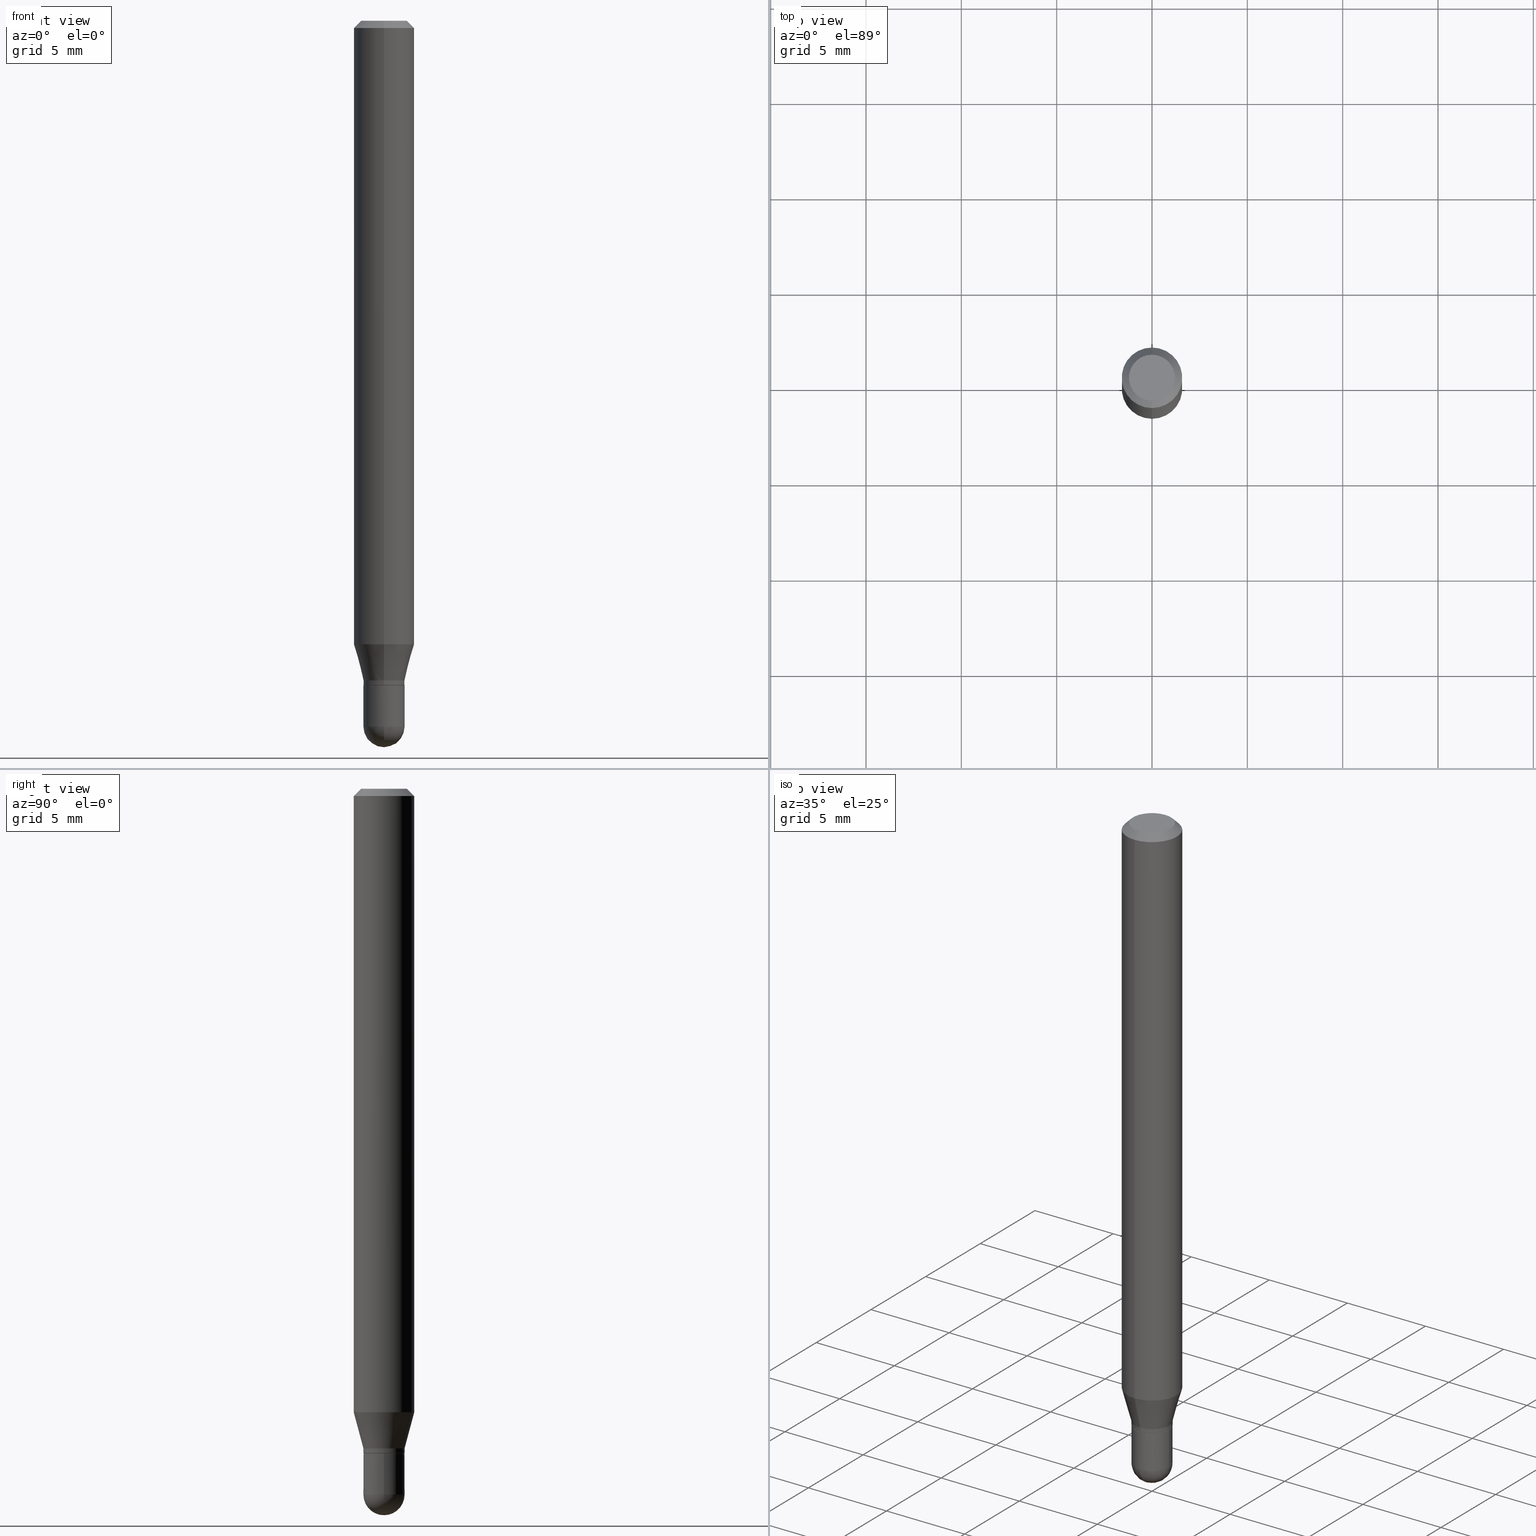
[diagram: canonical four-view strip — front | top / right | iso, engineering-drawing reading convention]
A machine part, canonical four-view strip (front | top / right | iso — engineering-drawing reading convention). The complete STEP part file that produces these views, byte-faithful:
ISO-10303-21;
HEADER;
FILE_DESCRIPTION (( 'STEP AP203' ),
    '1' );
FILE_NAME ('00801.STEP',
    '2024-03-07T18:25:49',
    ( '' ),
    ( '' ),
    'SwSTEP 2.0',
    'SolidWorks 2023',
    '' );
FILE_SCHEMA (( 'CONFIG_CONTROL_DESIGN' ));
ENDSEC;

DATA;
#1 = DIRECTION ( 'NONE',  ( -2.445382581440065558E-29, 3.491604817585695240E-15, 1.000000000000000000 ) ) ;
#2 = ORIENTED_EDGE ( 'NONE', *, *, #421, .F. ) ;
#3 = CC_DESIGN_PERSON_AND_ORGANIZATION_ASSIGNMENT ( #485, #443, ( #106 ) ) ;
#4 = CARTESIAN_POINT ( 'NONE',  ( 2.967759138017017551E-16, 0.04249999999999488215, -1.457500000000000462 ) ) ;
#5 = SECURITY_CLASSIFICATION_LEVEL ( 'unclassified' ) ;
#6 = EDGE_LOOP ( 'NONE', ( #135, #59, #113, #239 ) ) ;
#7 = EDGE_CURVE ( 'NONE', #124, #486, #461, .T. ) ;
#8 = DIRECTION ( 'NONE',  ( -1.000000000000000000, 6.982962677686265922E-15, -4.876176775795935793E-29 ) ) ;
#9 = DATE_AND_TIME ( #164, #139 ) ;
#10 = ORIENTED_EDGE ( 'NONE', *, *, #308, .T. ) ;
#11 = CARTESIAN_POINT ( 'NONE',  ( 3.668073872160100859E-31, -5.237407226378546385E-17, -0.01500000000000000812 ) ) ;
#12 = CC_DESIGN_PERSON_AND_ORGANIZATION_ASSIGNMENT ( #30, #420, ( #20 ) ) ;
#13 = PERSON_AND_ORGANIZATION_ROLE ( 'design_supplier' ) ;
#14 = ORIENTED_EDGE ( 'NONE', *, *, #445, .F. ) ;
#15 = CIRCLE ( 'NONE', #394, 0.04749999999999999362 ) ;
#16 = LOCAL_TIME ( 13, 25, 49.00000000000000000, #258 ) ;
#17 = LINE ( 'NONE', #173, #365 ) ;
#18 = EDGE_LOOP ( 'NONE', ( #501, #351, #49, #360 ) ) ;
#19 = ORIENTED_EDGE ( 'NONE', *, *, #387, .F. ) ;
#20 = PRODUCT_DEFINITION ( 'UNKNOWN', '', #356, #380 ) ;
#21 = CARTESIAN_POINT ( 'NONE',  ( 4.364351673553919652E-16, 0.06249999999999995143, -0.01500000000000022669 ) ) ;
#22 = AXIS2_PLACEMENT_3D ( 'NONE', #78, #39, #389 ) ;
#23 = MECHANICAL_CONTEXT ( 'NONE', #370, 'mechanical' ) ;
#24 = AXIS2_PLACEMENT_3D ( 'NONE', #292, #456, #185 ) ;
#25 = ORIENTED_EDGE ( 'NONE', *, *, #73, .T. ) ;
#26 = DATE_AND_TIME ( #378, #16 ) ;
#27 = ADVANCED_FACE ( 'NONE', ( #454 ), #221, .T. ) ;
#28 = CARTESIAN_POINT ( 'NONE',  ( 0.000000000000000000, 0.000000000000000000, 0.000000000000000000 ) ) ;
#29 = CARTESIAN_POINT ( 'NONE',  ( 3.560636328285825248E-29, -5.094038800260261442E-15, -1.457500000000000240 ) ) ;
#30 = PERSON_AND_ORGANIZATION ( #193, #451 ) ;
#31 = DIRECTION ( 'NONE',  ( -7.105427357601001070E-15, -1.000000000000000000, 0.000000000000000000 ) ) ;
#32 = DIRECTION ( 'NONE',  ( 2.445382581440065558E-29, -3.491604817585695240E-15, -1.000000000000000000 ) ) ;
#33 = CARTESIAN_POINT ( 'NONE',  ( 3.560636328285825248E-29, -5.094038800260261442E-15, -1.457500000000000240 ) ) ;
#34 = EDGE_LOOP ( 'NONE', ( #141, #402, #232, #94 ) ) ;
#35 = APPROVAL ( #263, 'UNSPECIFIED' ) ;
#36 = CARTESIAN_POINT ( 'NONE',  ( 3.330611075921369226E-29, -4.755565761551716279E-15, -1.362000000000000099 ) ) ;
#37 = CONICAL_SURFACE ( 'NONE', #171, 0.06250000000000000000, 0.7853981633974483900 ) ;
#38 = CC_DESIGN_APPROVAL ( #35, ( #356 ) ) ;
#39 = DIRECTION ( 'NONE',  ( -2.445468806185136597E-29, 3.491481338843145583E-15, 1.000000000000000000 ) ) ;
#40 = CARTESIAN_POINT ( 'NONE',  ( 3.353842210445050313E-29, -4.788736007318781411E-15, -1.371500000000000163 ) ) ;
#41 = APPROVAL_DATE_TIME ( #174, #35 ) ;
#42 = DIRECTION ( 'NONE',  ( -2.445382581440065558E-29, 3.491604817585695240E-15, 1.000000000000000000 ) ) ;
#43 = PERSON_AND_ORGANIZATION_ROLE ( 'creator' ) ;
#44 = ORIENTED_EDGE ( 'NONE', *, *, #279, .F. ) ;
#45 = EDGE_CURVE ( 'NONE', #439, #447, #160, .T. ) ;
#46 = CLOSED_SHELL ( 'NONE', ( #426, #400, #481, #58, #177, #508, #225, #120, #449, #192, #132, #464 ) ) ;
#47 = DIRECTION ( 'NONE',  ( -2.445382581440065838E-29, 3.491604817585695634E-15, 1.000000000000000000 ) ) ;
#48 = DATE_AND_TIME ( #288, #181 ) ;
#49 = ORIENTED_EDGE ( 'NONE', *, *, #408, .T. ) ;
#50 = DIRECTION ( 'NONE',  ( -2.445468806185136597E-29, 3.491481338843145583E-15, 1.000000000000000000 ) ) ;
#51 = EDGE_LOOP ( 'NONE', ( #249, #374, #199, #467 ) ) ;
#52 = CARTESIAN_POINT ( 'NONE',  ( -3.773273898774340269E-16, -0.04749999999999999362, 1.569967744837605006E-16 ) ) ;
#53 = ORIENTED_EDGE ( 'NONE', *, *, #244, .F. ) ;
#54 = AXIS2_PLACEMENT_3D ( 'NONE', #314, #272, #110 ) ;
#55 = CIRCLE ( 'NONE', #342, 0.04250000000000000999 ) ;
#56 = APPROVAL_ROLE ( '' ) ;
#57 = VERTEX_POINT ( 'NONE', #333 ) ;
#58 = ADVANCED_FACE ( 'NONE', ( #337 ), #184, .T. ) ;
#59 = ORIENTED_EDGE ( 'NONE', *, *, #158, .T. ) ;
#60 = ORIENTED_EDGE ( 'NONE', *, *, #245, .T. ) ;
#61 = EDGE_CURVE ( 'NONE', #372, #486, #498, .T. ) ;
#62 = AXIS2_PLACEMENT_3D ( 'NONE', #157, #269, #31 ) ;
#63 = CARTESIAN_POINT ( 'NONE',  ( -2.967759138016324832E-16, -0.04250000000000468681, -1.361999999999999877 ) ) ;
#64 = EDGE_LOOP ( 'NONE', ( #25, #369, #478, #44 ) ) ;
#65 = CC_DESIGN_DATE_AND_TIME_ASSIGNMENT ( #108, #148, ( #20 ) ) ;
#66 =( CONVERSION_BASED_UNIT ( 'INCH', #453 ) LENGTH_UNIT ( ) NAMED_UNIT ( #462 ) );
#67 = ORIENTED_EDGE ( 'NONE', *, *, #315, .T. ) ;
#68 = APPROVAL_ROLE ( '' ) ;
#69 = EDGE_CURVE ( 'NONE', #247, #109, #455, .T. ) ;
#70 = CARTESIAN_POINT ( 'NONE',  ( 0.000000000000000000, 0.000000000000000000, 0.000000000000000000 ) ) ;
#71 = CARTESIAN_POINT ( 'NONE',  ( -0.04250000000000000999, -4.637592561430298716E-15, -1.457500000000000240 ) ) ;
#72 = CIRCLE ( 'NONE', #473, 0.06250000000000000000 ) ;
#73 = EDGE_CURVE ( 'NONE', #92, #372, #118, .T. ) ;
#74 = ORIENTED_EDGE ( 'NONE', *, *, #459, .F. ) ;
#75 = FACE_OUTER_BOUND ( 'NONE', #278, .T. ) ;
#76 = CARTESIAN_POINT ( 'NONE',  ( 3.148085235163804015E-29, -4.494948829968075208E-15, -1.287358983848622573 ) ) ;
#77 = EDGE_CURVE ( 'NONE', #393, #122, #187, .T. ) ;
#78 = CARTESIAN_POINT ( 'NONE',  ( 3.564270785014837509E-29, -5.088834051363884851E-15, -1.457500000000000240 ) ) ;
#79 = CIRCLE ( 'NONE', #180, 0.04250000000000000999 ) ;
#80 = FACE_OUTER_BOUND ( 'NONE', #90, .T. ) ;
#81 = DIRECTION ( 'NONE',  ( -4.851104656540964275E-15, -0.7071067811865500152, -0.7071067811865450192 ) ) ;
#82 = EDGE_LOOP ( 'NONE', ( #60, #418, #444, #319, #507 ) ) ;
#83 = CARTESIAN_POINT ( 'NONE',  ( 3.666385980913199605E-29, -5.239824382712906867E-15, -1.500000000000000222 ) ) ;
#84 = ORIENTED_EDGE ( 'NONE', *, *, #320, .T. ) ;
#85 = ADVANCED_FACE ( 'NONE', ( #226 ), #457, .T. ) ;
#86 = AXIS2_PLACEMENT_3D ( 'NONE', #76, #200, #163 ) ;
#87 = CC_DESIGN_APPROVAL ( #286, ( #106 ) ) ;
#88 = CARTESIAN_POINT ( 'NONE',  ( 3.019806626980764231E-16, 0.04249999999999526379, -1.371500000000000385 ) ) ;
#89 = SHAPE_DEFINITION_REPRESENTATION ( #133, #419 ) ;
#90 = EDGE_LOOP ( 'NONE', ( #422, #10, #480, #328 ) ) ;
#91 = DIRECTION ( 'NONE',  ( 2.438088387897960049E-29, -3.491481338843145188E-15, -1.000000000000000000 ) ) ;
#92 = VERTEX_POINT ( 'NONE', #98 ) ;
#93 = APPLICATION_PROTOCOL_DEFINITION ( 'international standard', 'config_control_design', 1994, #370 ) ;
#94 = ORIENTED_EDGE ( 'NONE', *, *, #7, .F. ) ;
#95 = CIRCLE ( 'NONE', #500, 0.04249999999999993366 ) ;
#96 = AXIS2_PLACEMENT_3D ( 'NONE', #479, #475, #438 ) ;
#97 =( NAMED_UNIT ( * ) SI_UNIT ( $, .STERADIAN. ) SOLID_ANGLE_UNIT ( ) );
#98 = CARTESIAN_POINT ( 'NONE',  ( -4.364351673553598192E-16, -0.06250000000000445477, -1.287358983848622129 ) ) ;
#99 = EDGE_CURVE ( 'NONE', #439, #122, #381, .T. ) ;
#100 = ORIENTED_EDGE ( 'NONE', *, *, #505, .F. ) ;
#101 = EDGE_CURVE ( 'NONE', #397, #247, #79, .T. ) ;
#102 = APPROVAL_STATUS ( 'not_yet_approved' ) ;
#103 = DIRECTION ( 'NONE',  ( -2.445468806185136877E-29, 3.491481338843145188E-15, 1.000000000000000000 ) ) ;
#104 = CC_DESIGN_DATE_AND_TIME_ASSIGNMENT ( #9, #277, ( #106 ) ) ;
#105 = FACE_OUTER_BOUND ( 'NONE', #51, .T. ) ;
#106 = SECURITY_CLASSIFICATION ( '', '', #5 ) ;
#107 = DIRECTION ( 'NONE',  ( -2.445382581440065558E-29, 3.491604817585695240E-15, 1.000000000000000000 ) ) ;
#108 = DATE_AND_TIME ( #460, #296 ) ;
#109 = VERTEX_POINT ( 'NONE', #510 ) ;
#110 = DIRECTION ( 'NONE',  ( -6.982962677686265922E-15, -1.000000000000000000, 6.504399984914913214E-15 ) ) ;
#111 = AXIS2_PLACEMENT_3D ( 'NONE', #36, #307, #117 ) ;
#112 = DIRECTION ( 'NONE',  ( -2.445382581440065558E-29, 3.491604817585695240E-15, 1.000000000000000000 ) ) ;
#113 = ORIENTED_EDGE ( 'NONE', *, *, #324, .F. ) ;
#114 = CARTESIAN_POINT ( 'NONE',  ( -0.04250000000000000999, 3.019806626980426500E-16, -2.090547413358335560E-30 ) ) ;
#115 = ADVANCED_FACE ( 'NONE', ( #349 ), #506, .T. ) ;
#116 = DIRECTION ( 'NONE',  ( 1.000000000000000000, -6.982962677686276177E-15, 0.000000000000000000 ) ) ;
#117 = DIRECTION ( 'NONE',  ( -6.982962677686265133E-15, -1.000000000000000000, 6.427877632151217642E-15 ) ) ;
#118 = CIRCLE ( 'NONE', #234, 0.06250000000000000000 ) ;
#119 = AXIS2_PLACEMENT_3D ( 'NONE', #28, #254, #407 ) ;
#120 = ADVANCED_FACE ( 'NONE', ( #471 ), #37, .T. ) ;
#121 = DIRECTION ( 'NONE',  ( -2.445382581440065838E-29, 3.491604817585695634E-15, 1.000000000000000000 ) ) ;
#122 = VERTEX_POINT ( 'NONE', #191 ) ;
#123 = CARTESIAN_POINT ( 'NONE',  ( -2.932844324627895747E-16, -0.04200000000000478351, -1.371999999999999664 ) ) ;
#124 = VERTEX_POINT ( 'NONE', #230 ) ;
#125 = FACE_OUTER_BOUND ( 'NONE', #169, .T. ) ;
#126 = ORIENTED_EDGE ( 'NONE', *, *, #194, .T. ) ;
#127 = AXIS2_PLACEMENT_3D ( 'NONE', #352, #423, #274 ) ;
#128 = AXIS2_PLACEMENT_3D ( 'NONE', #477, #1, #396 ) ;
#129 = CARTESIAN_POINT ( 'NONE',  ( 0.000000000000000000, 0.000000000000000000, 0.000000000000000000 ) ) ;
#130 = COORDINATED_UNIVERSAL_TIME_OFFSET ( 5, 0, .BEHIND. ) ;
#131 = ORIENTED_EDGE ( 'NONE', *, *, #154, .F. ) ;
#132 = ADVANCED_FACE ( 'NONE', ( #151 ), #472, .T. ) ;
#133 = PRODUCT_DEFINITION_SHAPE ( 'NONE', 'NONE',  #20 ) ;
#134 = DIRECTION ( 'NONE',  ( -6.982962677686265922E-15, -1.000000000000000000, 3.483106191921935554E-15 ) ) ;
#135 = ORIENTED_EDGE ( 'NONE', *, *, #412, .F. ) ;
#136 = CARTESIAN_POINT ( 'NONE',  ( 3.330611075921369226E-29, -4.755565761551716279E-15, -1.362000000000000099 ) ) ;
#137 = DIRECTION ( 'NONE',  ( -6.982962677686265922E-15, -1.000000000000000000, 4.370956789862821150E-15 ) ) ;
#138 = CIRCLE ( 'NONE', #22, 0.04250000000000000999 ) ;
#139 = LOCAL_TIME ( 13, 25, 49.00000000000000000, #237 ) ;
#140 = DIRECTION ( 'NONE',  ( -2.445382581440065558E-29, 3.491604817585695240E-15, 1.000000000000000000 ) ) ;
#141 = ORIENTED_EDGE ( 'NONE', *, *, #182, .F. ) ;
#142 = PERSON_AND_ORGANIZATION ( #193, #451 ) ;
#143 = DIRECTION ( 'NONE',  ( -6.982962677686265922E-15, -1.000000000000000000, 3.491604817585695240E-15 ) ) ;
#144 = DIRECTION ( 'NONE',  ( -6.982962677686266711E-15, -1.000000000000000000, 3.491604817585695240E-15 ) ) ;
#145 = CARTESIAN_POINT ( 'NONE',  ( 0.04250000000000000999, -2.967759138016664042E-16, 2.072375129713273202E-30 ) ) ;
#146 = APPLICATION_CONTEXT ( 'configuration controlled 3d designs of mechanical parts and assemblies' ) ;
#147 = AXIS2_PLACEMENT_3D ( 'NONE', #218, #414, #143 ) ;
#148 = DATE_TIME_ROLE ( 'creation_date' ) ;
#149 = DIRECTION ( 'NONE',  ( -2.445382581440065838E-29, 3.491604817585695634E-15, 1.000000000000000000 ) ) ;
#150 = DIRECTION ( 'NONE',  ( 1.000000000000000000, -6.982962677686273810E-15, 0.000000000000000000 ) ) ;
#151 = FACE_OUTER_BOUND ( 'NONE', #18, .T. ) ;
#152 = ORIENTED_EDGE ( 'NONE', *, *, #265, .F. ) ;
#153 = DIRECTION ( 'NONE',  ( 6.982962677686265922E-15, 1.000000000000000000, -6.427877632151214487E-15 ) ) ;
#154 = EDGE_CURVE ( 'NONE', #122, #393, #95, .T. ) ;
#155 = DIRECTION ( 'NONE',  ( -2.445382581440065558E-29, 3.491604817585695240E-15, 1.000000000000000000 ) ) ;
#156 = CC_DESIGN_PERSON_AND_ORGANIZATION_ASSIGNMENT ( #327, #13, ( #356 ) ) ;
#157 = CARTESIAN_POINT ( 'NONE',  ( 3.560636328285825248E-29, -5.094038800260261442E-15, -1.457500000000000240 ) ) ;
#158 = EDGE_CURVE ( 'NONE', #291, #397, #283, .T. ) ;
#159 = DIRECTION ( 'NONE',  ( 1.000000000000000000, -6.982962677686276177E-15, 0.000000000000000000 ) ) ;
#160 = CIRCLE ( 'NONE', #458, 0.04249999999999991979 ) ;
#161 = AXIS2_PLACEMENT_3D ( 'NONE', #223, #499, #144 ) ;
#162 = ORIENTED_EDGE ( 'NONE', *, *, #505, .T. ) ;
#163 = DIRECTION ( 'NONE',  ( -6.982962677686265922E-15, -1.000000000000000000, 4.370956789862821150E-15 ) ) ;
#164 = CALENDAR_DATE ( 2024, 7, 3 ) ;
#165 = ORIENTED_EDGE ( 'NONE', *, *, #77, .F. ) ;
#166 = CARTESIAN_POINT ( 'NONE',  ( 3.355064901735769338E-29, -4.790481809727574147E-15, -1.372000000000000108 ) ) ;
#167 = ORIENTED_EDGE ( 'NONE', *, *, #279, .T. ) ;
#168 = DIRECTION ( 'NONE',  ( 5.024295867788190974E-15, 0.7071067811865681119, 0.7071067811865270336 ) ) ;
#169 = EDGE_LOOP ( 'NONE', ( #406, #325, #131, #437 ) ) ;
#170 = EDGE_CURVE ( 'NONE', #301, #428, #214, .T. ) ;
#171 = AXIS2_PLACEMENT_3D ( 'NONE', #266, #32, #465 ) ;
#172 = CIRCLE ( 'NONE', #96, 0.04249999999999995448 ) ;
#173 = CARTESIAN_POINT ( 'NONE',  ( 3.019806626980419597E-16, 0.04249999999999991979, -1.483932047473917706E-16 ) ) ;
#174 = DATE_AND_TIME ( #189, #260 ) ;
#175 = EDGE_LOOP ( 'NONE', ( #14, #409 ) ) ;
#176 = ORIENTED_EDGE ( 'NONE', *, *, #474, .F. ) ;
#177 = ADVANCED_FACE ( 'NONE', ( #512 ), #347, .T. ) ;
#178 = DIRECTION ( 'NONE',  ( -2.445468806185136597E-29, 3.491481338843145583E-15, 1.000000000000000000 ) ) ;
#179 = ORIENTED_EDGE ( 'NONE', *, *, #101, .F. ) ;
#180 = AXIS2_PLACEMENT_3D ( 'NONE', #255, #197, #150 ) ;
#181 = LOCAL_TIME ( 13, 25, 49.00000000000000000, #130 ) ;
#182 = EDGE_CURVE ( 'NONE', #354, #124, #15, .T. ) ;
#183 = DIRECTION ( 'NONE',  ( 1.000000000000000000, -6.982962677686266711E-15, 4.876176775795935793E-29 ) ) ;
#184 = CYLINDRICAL_SURFACE ( 'NONE', #147, 0.06250000000000000000 ) ;
#185 = DIRECTION ( 'NONE',  ( 6.982962677686265922E-15, 1.000000000000000000, -3.483106191921935554E-15 ) ) ;
#186 = DIRECTION ( 'NONE',  ( -1.000000000000000000, 6.982962677686265922E-15, -4.883557194083112901E-29 ) ) ;
#187 = CIRCLE ( 'NONE', #215, 0.04249999999999993366 ) ;
#188 = CIRCLE ( 'NONE', #502, 0.04250000000000000999 ) ;
#189 = CALENDAR_DATE ( 2024, 7, 3 ) ;
#190 = CARTESIAN_POINT ( 'NONE',  ( 3.355064901735769338E-29, -4.790481809727574147E-15, -1.372000000000000108 ) ) ;
#191 = CARTESIAN_POINT ( 'NONE',  ( -2.967759138016324832E-16, -0.04250000000000468681, -1.361999999999999877 ) ) ;
#192 = ADVANCED_FACE ( 'NONE', ( #430 ), #470, .F. ) ;
#193 = PERSON ( 'UNSPECIFIED', 'UNSPECIFIED', 'UNSPECIFIED', ('UNSPECIFIED'), ('UNSPECIFIED'), ('UNSPECIFIED') ) ;
#194 = EDGE_CURVE ( 'NONE', #109, #57, #364, .T. ) ;
#195 = CARTESIAN_POINT ( 'NONE',  ( 2.165252843946101879E-46, -3.091625547099952297E-32, -8.854454351560001883E-18 ) ) ;
#196 = VECTOR ( 'NONE', #47, 39.37007874015748143 ) ;
#197 = DIRECTION ( 'NONE',  ( -2.445468806185136597E-29, 3.491481338843145583E-15, 1.000000000000000000 ) ) ;
#198 = VECTOR ( 'NONE', #81, 39.37007874015748143 ) ;
#199 = ORIENTED_EDGE ( 'NONE', *, *, #474, .T. ) ;
#200 = DIRECTION ( 'NONE',  ( -2.445382581440065558E-29, 3.491604817585695240E-15, 1.000000000000000000 ) ) ;
#201 = DIRECTION ( 'NONE',  ( -2.445382581440065558E-29, 3.491604817585695240E-15, 1.000000000000000000 ) ) ;
#202 = APPROVAL_DATE_TIME ( #48, #286 ) ;
#203 = CC_DESIGN_PERSON_AND_ORGANIZATION_ASSIGNMENT ( #336, #495, ( #302 ) ) ;
#204 = LINE ( 'NONE', #123, #483 ) ;
#205 = AXIS2_PLACEMENT_3D ( 'NONE', #335, #306, #183 ) ;
#206 = ORIENTED_EDGE ( 'NONE', *, *, #154, .T. ) ;
#207 = FACE_OUTER_BOUND ( 'NONE', #211, .T. ) ;
#208 = VERTEX_POINT ( 'NONE', #228 ) ;
#209 = CARTESIAN_POINT ( 'NONE',  ( -4.364351673553916201E-16, -0.06250000000000000000, 2.182253010991059525E-16 ) ) ;
#210 = PERSON_AND_ORGANIZATION ( #193, #451 ) ;
#211 = EDGE_LOOP ( 'NONE', ( #126, #399 ) ) ;
#212 = DIRECTION ( 'NONE',  ( 1.000000000000000000, -6.982962677686273810E-15, 0.000000000000000000 ) ) ;
#213 = ORIENTED_EDGE ( 'NONE', *, *, #250, .T. ) ;
#214 = CIRCLE ( 'NONE', #54, 0.04199999999999999567 ) ;
#215 = AXIS2_PLACEMENT_3D ( 'NONE', #294, #107, #262 ) ;
#216 = CIRCLE ( 'NONE', #161, 0.04749999999999999362 ) ;
#217 = PLANE ( 'NONE',  #222 ) ;
#218 = CARTESIAN_POINT ( 'NONE',  ( 0.000000000000000000, 0.000000000000000000, 0.000000000000000000 ) ) ;
#219 = DIRECTION ( 'NONE',  ( 6.982962677686265922E-15, 1.000000000000000000, -3.491604817585695634E-15 ) ) ;
#220 = VERTEX_POINT ( 'NONE', #71 ) ;
#221 = CYLINDRICAL_SURFACE ( 'NONE', #205, 0.04250000000000000999 ) ;
#222 = AXIS2_PLACEMENT_3D ( 'NONE', #298, #368, #219 ) ;
#223 = CARTESIAN_POINT ( 'NONE',  ( 2.165252843946101879E-46, -3.091625547099952297E-32, -8.854454351560001883E-18 ) ) ;
#224 = CARTESIAN_POINT ( 'NONE',  ( 3.148085235163804015E-29, -4.494948829968075208E-15, -1.287358983848622573 ) ) ;
#225 = ADVANCED_FACE ( 'NONE', ( #75 ), #235, .T. ) ;
#226 = FACE_OUTER_BOUND ( 'NONE', #6, .T. ) ;
#227 = COORDINATED_UNIVERSAL_TIME_OFFSET ( 5, 0, .BEHIND. ) ;
#228 = CARTESIAN_POINT ( 'NONE',  ( -4.364351673553912750E-16, -0.06250000000000005551, -0.01499999999999979128 ) ) ;
#229 = CIRCLE ( 'NONE', #275, 0.04249999999999991979 ) ;
#230 = CARTESIAN_POINT ( 'NONE',  ( 3.840629472727447874E-16, 0.04749999999999999362, -1.747056831868805136E-16 ) ) ;
#231 = ADVANCED_FACE ( 'NONE', ( #345 ), #386, .T. ) ;
#232 = ORIENTED_EDGE ( 'NONE', *, *, #331, .T. ) ;
#233 = CARTESIAN_POINT ( 'NONE',  ( 0.000000000000000000, 0.000000000000000000, 0.000000000000000000 ) ) ;
#234 = AXIS2_PLACEMENT_3D ( 'NONE', #224, #379, #137 ) ;
#235 = CYLINDRICAL_SURFACE ( 'NONE', #241, 0.06250000000000000000 ) ;
#236 = DIRECTION ( 'NONE',  ( -2.445382581440065558E-29, 3.491604817585695240E-15, 1.000000000000000000 ) ) ;
#237 = COORDINATED_UNIVERSAL_TIME_OFFSET ( 5, 0, .BEHIND. ) ;
#238 = LINE ( 'NONE', #390, #242 ) ;
#239 = ORIENTED_EDGE ( 'NONE', *, *, #245, .F. ) ;
#240 = CARTESIAN_POINT ( 'NONE',  ( 3.730349362740847299E-16, 0.04249999999999517358, -1.362000000000000322 ) ) ;
#241 = AXIS2_PLACEMENT_3D ( 'NONE', #70, #383, #509 ) ;
#242 = VECTOR ( 'NONE', #434, 39.37007874015748854 ) ;
#243 = EDGE_LOOP ( 'NONE', ( #53, #281, #289, #310, #19 ) ) ;
#244 = EDGE_CURVE ( 'NONE', #220, #57, #469, .T. ) ;
#245 = EDGE_CURVE ( 'NONE', #251, #220, #138, .T. ) ;
#246 = DIRECTION ( 'NONE',  ( -6.982962677686266711E-15, -1.000000000000000000, 6.427877632151220009E-15 ) ) ;
#247 = VERTEX_POINT ( 'NONE', #429 ) ;
#248 = DIRECTION ( 'NONE',  ( -6.982962677686266711E-15, -1.000000000000000000, 3.491604817585695240E-15 ) ) ;
#249 = ORIENTED_EDGE ( 'NONE', *, *, #315, .F. ) ;
#250 = EDGE_CURVE ( 'NONE', #372, #92, #311, .T. ) ;
#251 = VERTEX_POINT ( 'NONE', #4 ) ;
#252 = AXIS2_PLACEMENT_3D ( 'NONE', #29, #186, #452 ) ;
#253 = APPROVAL_PERSON_ORGANIZATION ( #142, #435, #56 ) ;
#254 = DIRECTION ( 'NONE',  ( 0.000000000000000000, 0.000000000000000000, 1.000000000000000000 ) ) ;
#255 = CARTESIAN_POINT ( 'NONE',  ( 3.564270785014837509E-29, -5.088834051363884851E-15, -1.457500000000000240 ) ) ;
#256 = EDGE_LOOP ( 'NONE', ( #162, #358 ) ) ;
#257 = MANIFOLD_SOLID_BREP ( 'Body-Move/Copy2[2]', #46 ) ;
#258 = COORDINATED_UNIVERSAL_TIME_OFFSET ( 5, 0, .BEHIND. ) ;
#259 = CARTESIAN_POINT ( 'NONE',  ( 3.353842210445050313E-29, -4.788736007318781411E-15, -1.371500000000000163 ) ) ;
#260 = LOCAL_TIME ( 13, 25, 49.00000000000000000, #227 ) ;
#261 = FACE_OUTER_BOUND ( 'NONE', #256, .T. ) ;
#262 = DIRECTION ( 'NONE',  ( -6.982962677686265133E-15, -1.000000000000000000, 6.427877632151217642E-15 ) ) ;
#263 = APPROVAL_STATUS ( 'not_yet_approved' ) ;
#264 = ORIENTED_EDGE ( 'NONE', *, *, #73, .F. ) ;
#265 = EDGE_CURVE ( 'NONE', #486, #208, #375, .T. ) ;
#266 = CARTESIAN_POINT ( 'NONE',  ( 3.668073872160100859E-31, -5.237407226378546385E-17, -0.01500000000000000812 ) ) ;
#267 = VECTOR ( 'NONE', #494, 39.37007874015748143 ) ;
#268 = AXIS2_PLACEMENT_3D ( 'NONE', #129, #398, #248 ) ;
#269 = DIRECTION ( 'NONE',  ( -1.000000000000000000, 7.105427357601001070E-15, -4.926315508542082329E-29 ) ) ;
#270 = ORIENTED_EDGE ( 'NONE', *, *, #158, .F. ) ;
#271 = DIRECTION ( 'NONE',  ( -2.445468806185136877E-29, 3.491481338843145188E-15, 1.000000000000000000 ) ) ;
#272 = DIRECTION ( 'NONE',  ( -2.445382581440065558E-29, 3.491604817585695240E-15, 1.000000000000000000 ) ) ;
#273 = CONICAL_SURFACE ( 'NONE', #304, 0.04199999999999999567, 0.7853981633974739252 ) ;
#274 = DIRECTION ( 'NONE',  ( -6.982962677686265922E-15, -1.000000000000000000, 3.491604817585695634E-15 ) ) ;
#275 = AXIS2_PLACEMENT_3D ( 'NONE', #40, #321, #246 ) ;
#276 = LINE ( 'NONE', #401, #198 ) ;
#277 = DATE_TIME_ROLE ( 'classification_date' ) ;
#278 = EDGE_LOOP ( 'NONE', ( #322, #213, #167, #152 ) ) ;
#279 = EDGE_CURVE ( 'NONE', #92, #208, #359, .T. ) ;
#280 = CARTESIAN_POINT ( 'NONE',  ( 2.984279490192755246E-16, 0.04199999999999520783, -1.372000000000000330 ) ) ;
#281 = ORIENTED_EDGE ( 'NONE', *, *, #324, .T. ) ;
#282 = DIRECTION ( 'NONE',  ( -2.445468806185136597E-29, 3.491481338843145583E-15, 1.000000000000000000 ) ) ;
#283 = CIRCLE ( 'NONE', #62, 0.04249999999999995448 ) ;
#284 = AXIS2_PLACEMENT_3D ( 'NONE', #433, #282, #159 ) ;
#285 = EDGE_LOOP ( 'NONE', ( #2, #84, #476, #165 ) ) ;
#286 = APPROVAL ( #366, 'UNSPECIFIED' ) ;
#287 = CARTESIAN_POINT ( 'NONE',  ( -2.932844324627895747E-16, -0.04200000000000478351, -1.371999999999999664 ) ) ;
#288 = CALENDAR_DATE ( 2024, 7, 3 ) ;
#289 = ORIENTED_EDGE ( 'NONE', *, *, #101, .T. ) ;
#290 = FACE_OUTER_BOUND ( 'NONE', #34, .T. ) ;
#291 = VERTEX_POINT ( 'NONE', #83 ) ;
#292 = CARTESIAN_POINT ( 'NONE',  ( 3.668073872160100859E-31, -5.237407226378546385E-17, -0.01500000000000000812 ) ) ;
#293 = UNCERTAINTY_MEASURE_WITH_UNIT (LENGTH_MEASURE( 1.000000000000000082E-05 ), #66, 'distance_accuracy_value', 'NONE');
#294 = CARTESIAN_POINT ( 'NONE',  ( 3.330611075921369226E-29, -4.755565761551716279E-15, -1.362000000000000099 ) ) ;
#295 = AXIS2_PLACEMENT_3D ( 'NONE', #425, #309, #116 ) ;
#296 = LOCAL_TIME ( 13, 25, 49.00000000000000000, #343 ) ;
#297 = DIRECTION ( 'NONE',  ( 4.937700262164548042E-15, 0.7071067811865451302, -0.7071067811865499042 ) ) ;
#298 = CARTESIAN_POINT ( 'NONE',  ( 3.316907271900976096E-16, 0.04749999999999999362, -1.702784560111005104E-16 ) ) ;
#299 = CARTESIAN_POINT ( 'NONE',  ( 4.440892098500625669E-16, 0.06250000000000000000, -2.182253010991059525E-16 ) ) ;
#300 = CYLINDRICAL_SURFACE ( 'NONE', #468, 0.04249999999999991979 ) ;
#301 = VERTEX_POINT ( 'NONE', #361 ) ;
#302 = PRODUCT ( '00801', '00801', '', ( #23 ) ) ;
#303 = CLOSED_SHELL ( 'NONE', ( #27, #85, #373, #231, #115 ) ) ;
#304 = AXIS2_PLACEMENT_3D ( 'NONE', #166, #42, #323 ) ;
#305 = PERSON_AND_ORGANIZATION ( #193, #451 ) ;
#306 = DIRECTION ( 'NONE',  ( -2.445468806185136597E-29, 3.491481338843145583E-15, 1.000000000000000000 ) ) ;
#307 = DIRECTION ( 'NONE',  ( -2.445382581440065558E-29, 3.491604817585695240E-15, 1.000000000000000000 ) ) ;
#308 = EDGE_CURVE ( 'NONE', #301, #447, #326, .T. ) ;
#309 = DIRECTION ( 'NONE',  ( -2.445468806185136597E-29, 3.491481338843145583E-15, 1.000000000000000000 ) ) ;
#310 = ORIENTED_EDGE ( 'NONE', *, *, #69, .T. ) ;
#311 = CIRCLE ( 'NONE', #86, 0.06250000000000000000 ) ;
#312 = CONICAL_SURFACE ( 'NONE', #416, 0.04249999999999993366, 0.2617993877991500740 ) ;
#313 = DIRECTION ( 'NONE',  ( -2.445382581440065558E-29, 3.491604817585695240E-15, 1.000000000000000000 ) ) ;
#314 = CARTESIAN_POINT ( 'NONE',  ( 3.355064901735769338E-29, -4.790481809727574147E-15, -1.372000000000000108 ) ) ;
#315 = EDGE_CURVE ( 'NONE', #393, #372, #238, .T. ) ;
#316 = DIRECTION ( 'NONE',  ( -6.982962677686265133E-15, -1.000000000000000000, 6.427877632151217642E-15 ) ) ;
#317 = CC_DESIGN_APPROVAL ( #435, ( #20 ) ) ;
#318 = CARTESIAN_POINT ( 'NONE',  ( 3.564270785014837509E-29, -5.088834051363884851E-15, -1.457500000000000240 ) ) ;
#319 = ORIENTED_EDGE ( 'NONE', *, *, #69, .F. ) ;
#320 = EDGE_CURVE ( 'NONE', #447, #439, #229, .T. ) ;
#321 = DIRECTION ( 'NONE',  ( -2.445382581440065558E-29, 3.491604817585695240E-15, 1.000000000000000000 ) ) ;
#322 = ORIENTED_EDGE ( 'NONE', *, *, #61, .F. ) ;
#323 = DIRECTION ( 'NONE',  ( -6.982962677686265922E-15, -1.000000000000000000, 6.504399984914913214E-15 ) ) ;
#324 = EDGE_CURVE ( 'NONE', #220, #397, #188, .T. ) ;
#325 = ORIENTED_EDGE ( 'NONE', *, *, #421, .T. ) ;
#326 = LINE ( 'NONE', #280, #493 ) ;
#327 = PERSON_AND_ORGANIZATION ( #193, #451 ) ;
#328 = ORIENTED_EDGE ( 'NONE', *, *, #408, .F. ) ;
#329 = CARTESIAN_POINT ( 'NONE',  ( -2.967759138016312999E-16, -0.04250000000000458272, -1.371499999999999941 ) ) ;
#330 = ORIENTED_EDGE ( 'NONE', *, *, #412, .T. ) ;
#331 = EDGE_CURVE ( 'NONE', #208, #486, #72, .T. ) ;
#332 = DIRECTION ( 'NONE',  ( -1.807323732225328562E-15, -0.2588190451025179639, 0.9659258262890690894 ) ) ;
#333 = CARTESIAN_POINT ( 'NONE',  ( -0.04249999999999999611, -4.637592561430297927E-15, -1.372000000000000108 ) ) ;
#334 = CARTESIAN_POINT ( 'NONE',  ( 0.000000000000000000, 0.000000000000000000, 0.000000000000000000 ) ) ;
#335 = CARTESIAN_POINT ( 'NONE',  ( 0.000000000000000000, 0.000000000000000000, 0.000000000000000000 ) ) ;
#336 = PERSON_AND_ORGANIZATION ( #193, #451 ) ;
#337 = FACE_OUTER_BOUND ( 'NONE', #64, .T. ) ;
#338 = CARTESIAN_POINT ( 'NONE',  ( 3.564270785014837509E-29, -5.088834051363884851E-15, -1.457500000000000240 ) ) ;
#339 = DIRECTION ( 'NONE',  ( -2.445382581440065558E-29, 3.491604817585695240E-15, 1.000000000000000000 ) ) ;
#340 = CARTESIAN_POINT ( 'NONE',  ( 4.440892098500942692E-16, 0.06249999999999995143, -0.01500000000000022669 ) ) ;
#341 = CARTESIAN_POINT ( 'NONE',  ( -2.967759138016657633E-16, -0.04249999999999991979, 1.483932047473917706E-16 ) ) ;
#342 = AXIS2_PLACEMENT_3D ( 'NONE', #338, #178, #371 ) ;
#343 = COORDINATED_UNIVERSAL_TIME_OFFSET ( 5, 0, .BEHIND. ) ;
#344 = DIRECTION ( 'NONE',  ( 1.000000000000000000, -6.982962677686266711E-15, 4.876176775795935793E-29 ) ) ;
#345 = FACE_OUTER_BOUND ( 'NONE', #490, .T. ) ;
#346 = DIRECTION ( 'NONE',  ( -1.000000000000000000, 6.982962677686265922E-15, -4.883557194083112901E-29 ) ) ;
#347 = CONICAL_SURFACE ( 'NONE', #111, 0.04249999999999993366, 0.2617993877991500740 ) ;
#348 = CIRCLE ( 'NONE', #128, 0.04199999999999999567 ) ;
#349 = FACE_OUTER_BOUND ( 'NONE', #243, .T. ) ;
#350 = EDGE_CURVE ( 'NONE', #354, #208, #276, .T. ) ;
#351 = ORIENTED_EDGE ( 'NONE', *, *, #170, .T. ) ;
#352 = CARTESIAN_POINT ( 'NONE',  ( 3.355064901735769338E-29, -4.790481809727574147E-15, -1.372000000000000108 ) ) ;
#353 = CYLINDRICAL_SURFACE ( 'NONE', #268, 0.04249999999999991979 ) ;
#354 = VERTEX_POINT ( 'NONE', #52 ) ;
#355 = AXIS2_PLACEMENT_3D ( 'NONE', #33, #346, #153 ) ;
#356 = PRODUCT_DEFINITION_FORMATION_WITH_SPECIFIED_SOURCE ( 'ANY', '', #302, .NOT_KNOWN. ) ;
#357 = CARTESIAN_POINT ( 'NONE',  ( 2.967759138016998322E-16, 0.04249999999999520828, -1.372000000000000330 ) ) ;
#358 = ORIENTED_EDGE ( 'NONE', *, *, #182, .T. ) ;
#359 = LINE ( 'NONE', #209, #196 ) ;
#360 = ORIENTED_EDGE ( 'NONE', *, *, #320, .F. ) ;
#361 = CARTESIAN_POINT ( 'NONE',  ( 3.002043058586754808E-16, 0.04199999999999520783, -1.372000000000000330 ) ) ;
#362 = EDGE_LOOP ( 'NONE', ( #448, #100, #411, #367 ) ) ;
#363 = DIRECTION ( 'NONE',  ( -4.937700262164674260E-15, -0.7071067811865632269, 0.7071067811865319186 ) ) ;
#364 = CIRCLE ( 'NONE', #295, 0.04249999999999999611 ) ;
#365 = VECTOR ( 'NONE', #121, 39.37007874015748143 ) ;
#366 = APPROVAL_STATUS ( 'not_yet_approved' ) ;
#367 = ORIENTED_EDGE ( 'NONE', *, *, #265, .T. ) ;
#368 = DIRECTION ( 'NONE',  ( 2.445382581440064717E-29, -3.491604817585695634E-15, -1.000000000000000000 ) ) ;
#369 = ORIENTED_EDGE ( 'NONE', *, *, #61, .T. ) ;
#370 = APPLICATION_CONTEXT ( 'configuration controlled 3d designs of mechanical parts and assemblies' ) ;
#371 = DIRECTION ( 'NONE',  ( 1.000000000000000000, -6.982962677686273810E-15, 0.000000000000000000 ) ) ;
#372 = VERTEX_POINT ( 'NONE', #392 ) ;
#373 = ADVANCED_FACE ( 'NONE', ( #207 ), #446, .F. ) ;
#374 = ORIENTED_EDGE ( 'NONE', *, *, #77, .T. ) ;
#375 = CIRCLE ( 'NONE', #440, 0.06250000000000000000 ) ;
#376 = CC_DESIGN_SECURITY_CLASSIFICATION ( #106, ( #356 ) ) ;
#377 = CC_DESIGN_PERSON_AND_ORGANIZATION_ASSIGNMENT ( #210, #43, ( #356 ) ) ;
#378 = CALENDAR_DATE ( 2024, 7, 3 ) ;
#379 = DIRECTION ( 'NONE',  ( -2.445382581440065558E-29, 3.491604817585695240E-15, 1.000000000000000000 ) ) ;
#380 = DESIGN_CONTEXT ( 'detailed design', #146, 'design' ) ;
#381 = LINE ( 'NONE', #341, #482 ) ;
#382 = APPROVAL_DATE_TIME ( #26, #435 ) ;
#383 = DIRECTION ( 'NONE',  ( -2.445382581440065558E-29, 3.491604817585695240E-15, 1.000000000000000000 ) ) ;
#384 = CONICAL_SURFACE ( 'NONE', #24, 0.06250000000000000000, 0.7853981633974483900 ) ;
#385 = DIRECTION ( 'NONE',  ( -6.982962677686265922E-15, -1.000000000000000000, 6.504399984914913214E-15 ) ) ;
#386 = SPHERICAL_SURFACE ( 'NONE', #355, 0.04249999999999995448 ) ;
#387 = EDGE_CURVE ( 'NONE', #57, #109, #441, .T. ) ;
#388 = DIRECTION ( 'NONE',  ( -2.445468806185136597E-29, 3.491481338843145583E-15, 1.000000000000000000 ) ) ;
#389 = DIRECTION ( 'NONE',  ( 1.000000000000000000, -6.982962677686273810E-15, 0.000000000000000000 ) ) ;
#390 = CARTESIAN_POINT ( 'NONE',  ( 3.019806626980753384E-16, 0.04249999999999517358, -1.362000000000000322 ) ) ;
#391 = APPROVAL_ROLE ( '' ) ;
#392 = CARTESIAN_POINT ( 'NONE',  ( 4.440892098500941706E-16, 0.06249999999999553135, -1.287358983848622795 ) ) ;
#393 = VERTEX_POINT ( 'NONE', #240 ) ;
#394 = AXIS2_PLACEMENT_3D ( 'NONE', #195, #155, #463 ) ;
#395 = APPROVAL_PERSON_ORGANIZATION ( #305, #35, #68 ) ;
#396 = DIRECTION ( 'NONE',  ( -6.982962677686265922E-15, -1.000000000000000000, 6.504399984914913214E-15 ) ) ;
#397 = VERTEX_POINT ( 'NONE', #442 ) ;
#398 = DIRECTION ( 'NONE',  ( -2.445382581440065558E-29, 3.491604817585695240E-15, 1.000000000000000000 ) ) ;
#399 = ORIENTED_EDGE ( 'NONE', *, *, #387, .T. ) ;
#400 = ADVANCED_FACE ( 'NONE', ( #80 ), #273, .T. ) ;
#401 = CARTESIAN_POINT ( 'NONE',  ( -4.287811248607203282E-16, -0.06250000000000005551, -0.01499999999999979128 ) ) ;
#402 = ORIENTED_EDGE ( 'NONE', *, *, #350, .T. ) ;
#403 = VECTOR ( 'NONE', #103, 39.37007874015748143 ) ;
#404 = APPLICATION_PROTOCOL_DEFINITION ( 'international standard', 'config_control_design', 1994, #146 ) ;
#405 = AXIS2_PLACEMENT_3D ( 'NONE', #357, #91, #8 ) ;
#406 = ORIENTED_EDGE ( 'NONE', *, *, #45, .T. ) ;
#407 = DIRECTION ( 'NONE',  ( 1.000000000000000000, 0.000000000000000000, 0.000000000000000000 ) ) ;
#408 = EDGE_CURVE ( 'NONE', #428, #439, #204, .T. ) ;
#409 = ORIENTED_EDGE ( 'NONE', *, *, #170, .F. ) ;
#410 = DIRECTION ( 'NONE',  ( -2.445382581440065558E-29, 3.491604817585695240E-15, 1.000000000000000000 ) ) ;
#411 = ORIENTED_EDGE ( 'NONE', *, *, #7, .T. ) ;
#412 = EDGE_CURVE ( 'NONE', #291, #251, #172, .T. ) ;
#413 = LINE ( 'NONE', #63, #432 ) ;
#414 = DIRECTION ( 'NONE',  ( -2.445382581440065558E-29, 3.491604817585695240E-15, 1.000000000000000000 ) ) ;
#415 = VECTOR ( 'NONE', #271, 39.37007874015748143 ) ;
#416 = AXIS2_PLACEMENT_3D ( 'NONE', #136, #410, #450 ) ;
#417 =( LENGTH_UNIT ( ) NAMED_UNIT ( * ) SI_UNIT ( $, .METRE. ) );
#418 = ORIENTED_EDGE ( 'NONE', *, *, #244, .T. ) ;
#419 = ADVANCED_BREP_SHAPE_REPRESENTATION ( '00801', ( #427, #257, #119 ), #503 ) ;
#420 = PERSON_AND_ORGANIZATION_ROLE ( 'creator' ) ;
#421 = EDGE_CURVE ( 'NONE', #447, #393, #17, .T. ) ;
#422 = ORIENTED_EDGE ( 'NONE', *, *, #445, .T. ) ;
#423 = DIRECTION ( 'NONE',  ( -2.445382581440064717E-29, 3.491604817585695634E-15, 1.000000000000000000 ) ) ;
#424 = APPROVAL_PERSON_ORGANIZATION ( #436, #286, #391 ) ;
#425 = CARTESIAN_POINT ( 'NONE',  ( 3.355183202086007133E-29, -4.790312396892795908E-15, -1.372000000000000108 ) ) ;
#426 = ADVANCED_FACE ( 'NONE', ( #125 ), #353, .T. ) ;
#427 = MANIFOLD_SOLID_BREP ( 'Body-Move/Copy2[1]', #303 ) ;
#428 = VERTEX_POINT ( 'NONE', #287 ) ;
#429 = CARTESIAN_POINT ( 'NONE',  ( 0.04250000000000000999, -5.236349137930008608E-15, -1.457500000000000240 ) ) ;
#430 = FACE_OUTER_BOUND ( 'NONE', #175, .T. ) ;
#431 = AXIS2_PLACEMENT_3D ( 'NONE', #233, #388, #344 ) ;
#432 = VECTOR ( 'NONE', #332, 39.37007874015748854 ) ;
#433 = CARTESIAN_POINT ( 'NONE',  ( 3.355183202086007133E-29, -4.790312396892795908E-15, -1.372000000000000108 ) ) ;
#434 = DIRECTION ( 'NONE',  ( 1.839019923739598738E-15, 0.2588190451025247363, 0.9659258262890673130 ) ) ;
#435 = APPROVAL ( #102, 'UNSPECIFIED' ) ;
#436 = PERSON_AND_ORGANIZATION ( #193, #451 ) ;
#437 = ORIENTED_EDGE ( 'NONE', *, *, #99, .F. ) ;
#438 = DIRECTION ( 'NONE',  ( 6.982962677686266711E-15, 1.000000000000000000, 0.000000000000000000 ) ) ;
#439 = VERTEX_POINT ( 'NONE', #329 ) ;
#440 = AXIS2_PLACEMENT_3D ( 'NONE', #11, #236, #487 ) ;
#441 = CIRCLE ( 'NONE', #284, 0.04249999999999999611 ) ;
#442 = CARTESIAN_POINT ( 'NONE',  ( -3.019806626980067075E-16, -0.04250000000000507538, -1.457500000000000018 ) ) ;
#443 = PERSON_AND_ORGANIZATION_ROLE ( 'classification_officer' ) ;
#444 = ORIENTED_EDGE ( 'NONE', *, *, #194, .F. ) ;
#445 = EDGE_CURVE ( 'NONE', #428, #301, #348, .T. ) ;
#446 = PLANE ( 'NONE',  #405 ) ;
#447 = VERTEX_POINT ( 'NONE', #88 ) ;
#448 = ORIENTED_EDGE ( 'NONE', *, *, #350, .F. ) ;
#449 = ADVANCED_FACE ( 'NONE', ( #261 ), #217, .F. ) ;
#450 = DIRECTION ( 'NONE',  ( -6.982962677686265133E-15, -1.000000000000000000, 6.427877632151217642E-15 ) ) ;
#451 = ORGANIZATION ( 'UNSPECIFIED', 'UNSPECIFIED', '' ) ;
#452 = DIRECTION ( 'NONE',  ( 6.982962677686265922E-15, 1.000000000000000000, -6.427877632151214487E-15 ) ) ;
#453 = LENGTH_MEASURE_WITH_UNIT ( LENGTH_MEASURE( 0.02539999999999999897 ), #417 );
#454 = FACE_OUTER_BOUND ( 'NONE', #82, .T. ) ;
#455 = LINE ( 'NONE', #145, #403 ) ;
#456 = DIRECTION ( 'NONE',  ( 2.445382581440065558E-29, -3.491604817585695240E-15, -1.000000000000000000 ) ) ;
#457 = SPHERICAL_SURFACE ( 'NONE', #252, 0.04249999999999995448 ) ;
#458 = AXIS2_PLACEMENT_3D ( 'NONE', #259, #339, #496 ) ;
#459 = EDGE_CURVE ( 'NONE', #247, #251, #55, .T. ) ;
#460 = CALENDAR_DATE ( 2024, 7, 3 ) ;
#461 = LINE ( 'NONE', #21, #491 ) ;
#462 = DIMENSIONAL_EXPONENTS ( 1.000000000000000000, 0.000000000000000000, 0.000000000000000000, 0.000000000000000000, 0.000000000000000000, 0.000000000000000000, 0.000000000000000000 ) ;
#463 = DIRECTION ( 'NONE',  ( -6.982962677686266711E-15, -1.000000000000000000, 3.491604817585695240E-15 ) ) ;
#464 = ADVANCED_FACE ( 'NONE', ( #497 ), #300, .T. ) ;
#465 = DIRECTION ( 'NONE',  ( 6.982962677686265922E-15, 1.000000000000000000, -3.483106191921935554E-15 ) ) ;
#466 = AXIS2_PLACEMENT_3D ( 'NONE', #190, #112, #385 ) ;
#467 = ORIENTED_EDGE ( 'NONE', *, *, #250, .F. ) ;
#468 = AXIS2_PLACEMENT_3D ( 'NONE', #334, #140, #492 ) ;
#469 = LINE ( 'NONE', #114, #415 ) ;
#470 = PLANE ( 'NONE',  #127 ) ;
#471 = FACE_OUTER_BOUND ( 'NONE', #362, .T. ) ;
#472 = CONICAL_SURFACE ( 'NONE', #466, 0.04199999999999999567, 0.7853981633974739252 ) ;
#473 = AXIS2_PLACEMENT_3D ( 'NONE', #484, #201, #134 ) ;
#474 = EDGE_CURVE ( 'NONE', #122, #92, #413, .T. ) ;
#475 = DIRECTION ( 'NONE',  ( 1.000000000000000000, -6.982962677686265922E-15, 4.883557194083112340E-29 ) ) ;
#476 = ORIENTED_EDGE ( 'NONE', *, *, #99, .T. ) ;
#477 = CARTESIAN_POINT ( 'NONE',  ( 3.355064901735769338E-29, -4.790481809727574147E-15, -1.372000000000000108 ) ) ;
#478 = ORIENTED_EDGE ( 'NONE', *, *, #331, .F. ) ;
#479 = CARTESIAN_POINT ( 'NONE',  ( 3.560636328285825248E-29, -5.094038800260261442E-15, -1.457500000000000240 ) ) ;
#480 = ORIENTED_EDGE ( 'NONE', *, *, #45, .F. ) ;
#481 = ADVANCED_FACE ( 'NONE', ( #290 ), #384, .T. ) ;
#482 = VECTOR ( 'NONE', #149, 39.37007874015748143 ) ;
#483 = VECTOR ( 'NONE', #363, 39.37007874015748143 ) ;
#484 = CARTESIAN_POINT ( 'NONE',  ( 3.668073872160100859E-31, -5.237407226378546385E-17, -0.01500000000000000812 ) ) ;
#485 = PERSON_AND_ORGANIZATION ( #193, #451 ) ;
#486 = VERTEX_POINT ( 'NONE', #340 ) ;
#487 = DIRECTION ( 'NONE',  ( -6.982962677686265922E-15, -1.000000000000000000, 3.483106191921935554E-15 ) ) ;
#488 = EDGE_LOOP ( 'NONE', ( #206, #67, #264, #176 ) ) ;
#489 =( NAMED_UNIT ( * ) PLANE_ANGLE_UNIT ( ) SI_UNIT ( $, .RADIAN. ) );
#490 = EDGE_LOOP ( 'NONE', ( #270, #330, #74, #179 ) ) ;
#491 = VECTOR ( 'NONE', #297, 39.37007874015748143 ) ;
#492 = DIRECTION ( 'NONE',  ( -6.982962677686266711E-15, -1.000000000000000000, 3.491604817585695240E-15 ) ) ;
#493 = VECTOR ( 'NONE', #168, 39.37007874015748143 ) ;
#494 = DIRECTION ( 'NONE',  ( -2.445382581440065838E-29, 3.491604817585695634E-15, 1.000000000000000000 ) ) ;
#495 = PERSON_AND_ORGANIZATION_ROLE ( 'design_owner' ) ;
#496 = DIRECTION ( 'NONE',  ( -6.982962677686266711E-15, -1.000000000000000000, 6.427877632151220009E-15 ) ) ;
#497 = FACE_OUTER_BOUND ( 'NONE', #285, .T. ) ;
#498 = LINE ( 'NONE', #299, #267 ) ;
#499 = DIRECTION ( 'NONE',  ( -2.445382581440065558E-29, 3.491604817585695240E-15, 1.000000000000000000 ) ) ;
#500 = AXIS2_PLACEMENT_3D ( 'NONE', #504, #313, #316 ) ;
#501 = ORIENTED_EDGE ( 'NONE', *, *, #308, .F. ) ;
#502 = AXIS2_PLACEMENT_3D ( 'NONE', #318, #50, #212 ) ;
#503 =( GEOMETRIC_REPRESENTATION_CONTEXT ( 3 ) GLOBAL_UNCERTAINTY_ASSIGNED_CONTEXT ( ( #293 ) ) GLOBAL_UNIT_ASSIGNED_CONTEXT ( ( #66, #489, #97 ) ) REPRESENTATION_CONTEXT ( 'NONE', 'WORKASPACE' ) );
#504 = CARTESIAN_POINT ( 'NONE',  ( 3.330611075921369226E-29, -4.755565761551716279E-15, -1.362000000000000099 ) ) ;
#505 = EDGE_CURVE ( 'NONE', #124, #354, #216, .T. ) ;
#506 = CYLINDRICAL_SURFACE ( 'NONE', #431, 0.04250000000000000999 ) ;
#507 = ORIENTED_EDGE ( 'NONE', *, *, #459, .T. ) ;
#508 = ADVANCED_FACE ( 'NONE', ( #105 ), #312, .T. ) ;
#509 = DIRECTION ( 'NONE',  ( -6.982962677686265922E-15, -1.000000000000000000, 3.491604817585695240E-15 ) ) ;
#510 = CARTESIAN_POINT ( 'NONE',  ( 0.04249999999999999611, -5.087088310694462559E-15, -1.372000000000000108 ) ) ;
#511 = PRODUCT_RELATED_PRODUCT_CATEGORY ( 'detail', '', ( #302 ) ) ;
#512 = FACE_OUTER_BOUND ( 'NONE', #488, .T. ) ;
ENDSEC;
END-ISO-10303-21;
